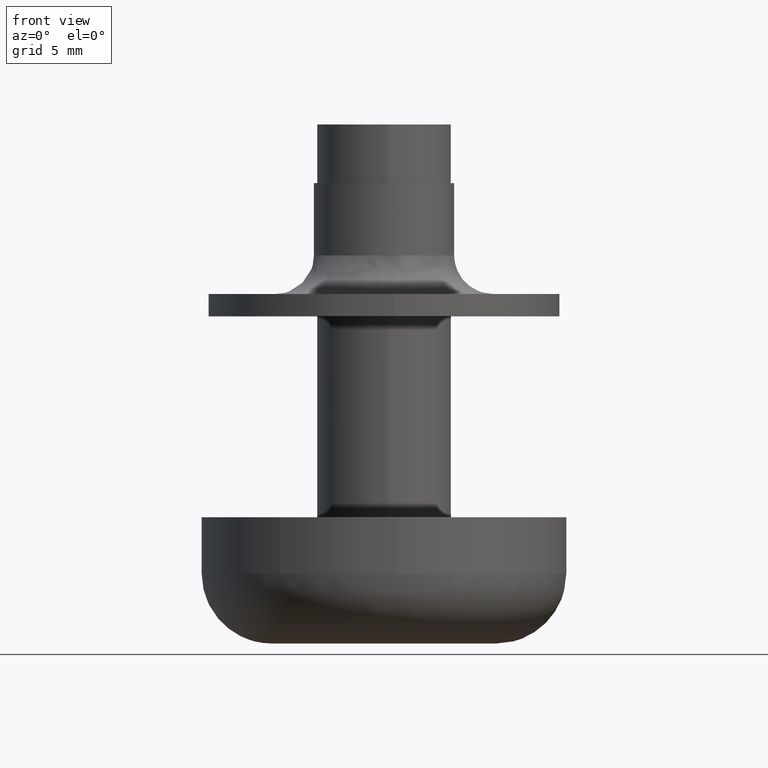
[diagram: clean part render]
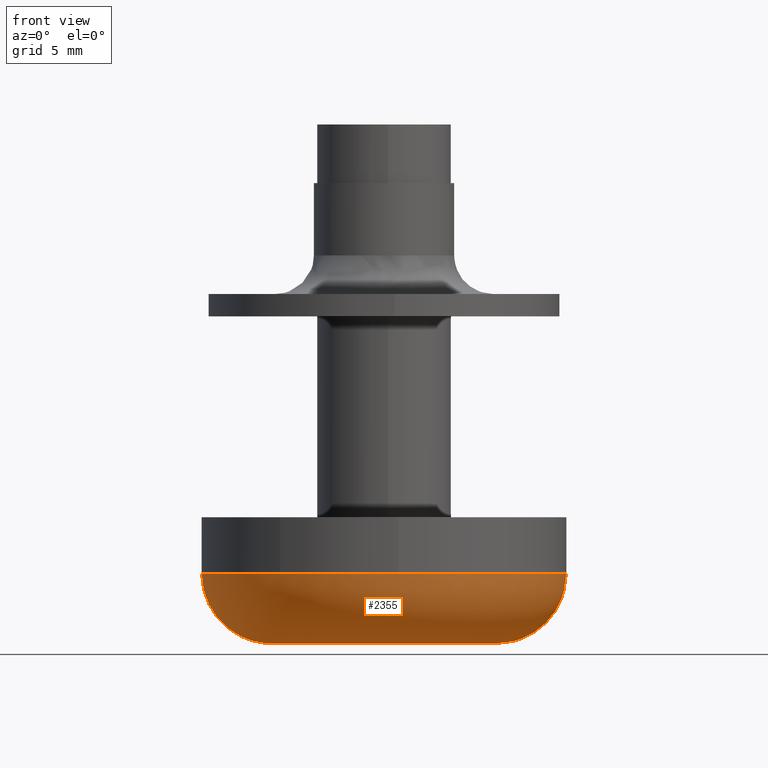
[diagram: same view with one face highlighted and labeled with its STEP entity id]
A machine part, front view. The second image highlights one B-rep face of the part: STEP entity #2355.
In plain terms, the highlighted face is a freeform B-spline surface patch.
Its self-contained STEP definition (entity closure, byte-faithful):
#1872=CARTESIAN_POINT('',(-7.420922211414788,-10.673795647853110,-32.000000000009173));
#1873=VERTEX_POINT('',#1872);
#1874=CARTESIAN_POINT('',(-12.998973574649600,-0.163358518484509,-32.000000000050612));
#1875=VERTEX_POINT('',#1874);
#1876=CARTESIAN_POINT('',(-7.420922211414788,-10.673795647853108,-32.000000000009173));
#1877=CARTESIAN_POINT('',(-12.914890403199166,-6.854132491527619,-32.000000000024230));
#1878=CARTESIAN_POINT('',(-12.998973574649593,-0.163358518484509,-32.000000000050605));
#1886=(BOUNDED_CURVE()B_SPLINE_CURVE(2,(#1876,#1877,#1878),.UNSPECIFIED.,.F.,.U.)B_SPLINE_CURVE_WITH_KNOTS((3,3),(0.848090585828457,0.997784295921704),.UNSPECIFIED.)CURVE()GEOMETRIC_REPRESENTATION_ITEM()RATIONAL_B_SPLINE_CURVE((0.860340233258638,0.822585875177073,0.994854295643956))REPRESENTATION_ITEM(''));
#1887=EDGE_CURVE('',#1873,#1875,#1886,.T.);
#1943=CARTESIAN_POINT('',(1.019966498145250,-12.959925475968531,-32.000000000000007));
#1944=VERTEX_POINT('',#1943);
#1950=CARTESIAN_POINT('',(13.0,0.0,-32.0));
#1951=VERTEX_POINT('',#1950);
#1952=CARTESIAN_POINT('',(13.0,0.0,-32.0));
#1953=CARTESIAN_POINT('',(12.999999999999998,-12.017078015834130,-32.0));
#1954=CARTESIAN_POINT('',(1.019966498145264,-12.959925475968650,-31.999999999999996));
#1962=(BOUNDED_CURVE()B_SPLINE_CURVE(2,(#1952,#1953,#1954),.UNSPECIFIED.,.F.,.U.)B_SPLINE_CURVE_WITH_KNOTS((3,3),(0.500000000000000,0.736331323731778),.UNSPECIFIED.)CURVE()GEOMETRIC_REPRESENTATION_ITEM()RATIONAL_B_SPLINE_CURVE((1.0,0.723120631543022,0.969723404377694))REPRESENTATION_ITEM(''));
#1963=EDGE_CURVE('',#1951,#1944,#1962,.T.);
#1965=CARTESIAN_POINT('',(-0.906532270490859,12.968353759924909,-32.000000000050363));
#1966=VERTEX_POINT('',#1965);
#1967=CARTESIAN_POINT('',(-0.906532270490859,12.968353759924907,-32.000000000050363));
#1968=CARTESIAN_POINT('',(-0.453818506381399,13.000000000000005,-32.000000000000007));
#1969=CARTESIAN_POINT('',(0.0,13.0,-32.0));
#1970=CARTESIAN_POINT('',(13.0,13.0,-32.0));
#1971=CARTESIAN_POINT('',(13.0,0.0,-32.0));
#1979=(BOUNDED_CURVE()B_SPLINE_CURVE(2,(#1967,#1968,#1969,#1970,#1971),.UNSPECIFIED.,.F.,.U.)B_SPLINE_CURVE_WITH_KNOTS((3,2,3),(0.237833686534866,0.250000000000000,0.500000000000000),.UNSPECIFIED.)CURVE()GEOMETRIC_REPRESENTATION_ITEM()RATIONAL_B_SPLINE_CURVE((0.972879876386499,0.985746277152414,1.0,0.707106781186547,1.0))REPRESENTATION_ITEM(''));
#1980=EDGE_CURVE('',#1966,#1951,#1979,.T.);
#2027=CARTESIAN_POINT('',(1.019966498145264,-12.959925475968650,-31.999999999999996));
#2028=CARTESIAN_POINT('',(0.510770513889300,-12.999999999999998,-32.0));
#2029=CARTESIAN_POINT('',(0.0,-13.0,-32.0));
#2030=CARTESIAN_POINT('',(-4.075053166098297,-13.000000000000004,-32.0));
#2031=CARTESIAN_POINT('',(-7.420922211414788,-10.673795647853106,-32.000000000009166));
#2039=(BOUNDED_CURVE()B_SPLINE_CURVE(2,(#2027,#2028,#2029,#2030,#2031),.UNSPECIFIED.,.F.,.U.)B_SPLINE_CURVE_WITH_KNOTS((3,2,3),(0.736331323731778,0.750000000000000,0.848090585828457),.UNSPECIFIED.)CURVE()GEOMETRIC_REPRESENTATION_ITEM()RATIONAL_B_SPLINE_CURVE((0.969723404377694,0.983986149643526,1.0,0.885079730325624,0.860340233258639))REPRESENTATION_ITEM(''));
#2040=EDGE_CURVE('',#1944,#1873,#2039,.T.);
#2252=CARTESIAN_POINT('',(-0.905687561821725,12.956280099952931,-31.652314447409072));
#2253=CARTESIAN_POINT('',(-0.534884749573036,12.982200463849928,-31.652314447409058));
#2254=CARTESIAN_POINT('',(-0.163206429528603,12.986871357237492,-31.652314447409069));
#2255=CARTESIAN_POINT('',(12.823664927708885,13.150077786766088,-31.652314447409061));
#2256=CARTESIAN_POINT('',(12.986871357237492,0.163206429528604,-31.652314447409069));
#2257=CARTESIAN_POINT('',(13.150077786766088,-12.823664927708881,-31.652314447409061));
#2258=CARTESIAN_POINT('',(0.163206429528605,-12.986871357237492,-31.652314447409069));
#2259=CARTESIAN_POINT('',(-12.823664927708879,-13.150077786766088,-31.652314447409061));
#2260=CARTESIAN_POINT('',(-12.986871357237492,-0.163206429528605,-31.652314447409069));
#2261=CARTESIAN_POINT('',(-0.933566120541245,13.355095796203145,-37.387686042102658));
#2262=CARTESIAN_POINT('',(-0.551349385422901,13.381814031703319,-37.387686042102651));
#2263=CARTESIAN_POINT('',(-0.168230192933131,13.386628702902421,-37.387686042102658));
#2264=CARTESIAN_POINT('',(13.218398509969287,13.554858895835551,-37.387686042102629));
#2265=CARTESIAN_POINT('',(13.386628702902421,0.168230192933132,-37.387686042102658));
#2266=CARTESIAN_POINT('',(13.554858895835551,-13.218398509969278,-37.387686042102629));
#2267=CARTESIAN_POINT('',(0.168230192933133,-13.386628702902421,-37.387686042102658));
#2268=CARTESIAN_POINT('',(-13.218398509969278,-13.554858895835551,-37.387686042102629));
#2269=CARTESIAN_POINT('',(-13.386628702902421,-0.168230192933134,-37.387686042102658));
#2270=CARTESIAN_POINT('',(-0.533620327583133,7.633685967033962,-36.987896807366106));
#2271=CARTESIAN_POINT('',(-0.315147725681771,7.648957936813435,-36.987896807366084));
#2272=CARTESIAN_POINT('',(-0.096159285011655,7.651709971581984,-36.987896807366084));
#2273=CARTESIAN_POINT('',(7.555550686570328,7.747869256593638,-36.987896807366077));
#2274=CARTESIAN_POINT('',(7.651709971581984,0.096159285011656,-36.987896807366084));
#2275=CARTESIAN_POINT('',(7.747869256593638,-7.555550686570328,-36.987896807366077));
#2276=CARTESIAN_POINT('',(0.096159285011656,-7.651709971581984,-36.987896807366084));
#2277=CARTESIAN_POINT('',(-7.555550686570326,-7.747869256593638,-36.987896807366077));
#2278=CARTESIAN_POINT('',(-7.651709971581984,-0.096159285011657,-36.987896807366084));
#2286=(BOUNDED_SURFACE()B_SPLINE_SURFACE(2,2,((#2252,#2261,#2270),(#2253,#2262,#2271),(#2254,#2263,#2272),(#2255,#2264,#2273),(#2256,#2265,#2274),(#2257,#2266,#2275),(#2258,#2267,#2276),(#2259,#2268,#2277),(#2260,#2269,#2278)),.UNSPECIFIED.,.F.,.F.,.U.)B_SPLINE_SURFACE_WITH_KNOTS((3,2,2,2,3),(3,3),(0.0,0.860761261102810,22.379813310840319,43.898865360577837,65.417917410315354),(0.0,9.111869915557183),.UNSPECIFIED.)GEOMETRIC_REPRESENTATION_ITEM()RATIONAL_B_SPLINE_SURFACE(((0.889999300497181,0.584039754305338,0.889999323362237),(0.899812871527177,0.590479664550228,0.899812894644354),(0.910479795675192,0.597479566409837,0.910479819066415),(0.643806437655271,0.422481853028794,0.643806454195363),(0.910479795675192,0.597479566409837,0.910479819066415),(0.643806437655271,0.422481853028794,0.643806454195363),(0.910479795675192,0.597479566409837,0.910479819066415),(0.643806437655271,0.422481853028794,0.643806454195363),(0.910479795675192,0.597479566409837,0.910479819066415)))REPRESENTATION_ITEM('')SURFACE());
#2287=ORIENTED_EDGE('',*,*,#1980,.T.);
#2288=ORIENTED_EDGE('',*,*,#1963,.T.);
#2289=ORIENTED_EDGE('',*,*,#2040,.T.);
#2290=ORIENTED_EDGE('',*,*,#1887,.T.);
#2291=CARTESIAN_POINT('',(-7.999368354055104,-0.100528319209804,-37.0));
#2292=VERTEX_POINT('',#2291);
#2293=CARTESIAN_POINT('',(-12.998973574649595,-0.163358518484509,-32.000000000050598));
#2294=CARTESIAN_POINT('',(-12.998973574548398,-0.163358518482313,-36.999999999147327));
#2295=CARTESIAN_POINT('',(-7.999368354055104,-0.100528319209804,-37.000000000000007));
#2303=(BOUNDED_CURVE()B_SPLINE_CURVE(2,(#2293,#2294,#2295),.UNSPECIFIED.,.F.,.U.)B_SPLINE_CURVE_WITH_KNOTS((3,3),(-1.725134643261056,-0.274865356893069),.UNSPECIFIED.)CURVE()GEOMETRIC_REPRESENTATION_ITEM()RATIONAL_B_SPLINE_CURVE((0.883342149645653,0.624617224162483,0.883342149590662))REPRESENTATION_ITEM(''));
#2304=EDGE_CURVE('',#1875,#2292,#2303,.T.);
#2305=ORIENTED_EDGE('',*,*,#2304,.T.);
#2306=CARTESIAN_POINT('',(8.0,0.0,-37.0));
#2307=VERTEX_POINT('',#2306);
#2308=CARTESIAN_POINT('',(8.0,0.0,-37.0));
#2309=CARTESIAN_POINT('',(8.0,-8.0,-37.0));
#2310=CARTESIAN_POINT('',(0.0,-8.0,-37.0));
#2311=CARTESIAN_POINT('',(-7.900095438986693,-8.0,-37.0));
#2312=CARTESIAN_POINT('',(-7.999368354055104,-0.100528319209804,-37.0));
#2320=(BOUNDED_CURVE()B_SPLINE_CURVE(2,(#2308,#2309,#2310,#2311,#2312),.UNSPECIFIED.,.F.,.U.)B_SPLINE_CURVE_WITH_KNOTS((3,2,3),(0.500000000000000,0.750000000000000,0.997784295915678),.UNSPECIFIED.)CURVE()GEOMETRIC_REPRESENTATION_ITEM()RATIONAL_B_SPLINE_CURVE((1.0,0.707106781186548,1.0,0.709702639991329,0.994854295630086))REPRESENTATION_ITEM(''));
#2321=EDGE_CURVE('',#2307,#2292,#2320,.T.);
#2322=ORIENTED_EDGE('',*,*,#2321,.F.);
#2323=CARTESIAN_POINT('',(-0.557866012625054,7.980525390819206,-37.0));
#2324=VERTEX_POINT('',#2323);
#2325=CARTESIAN_POINT('',(-0.557866012625054,7.980525390819206,-37.0));
#2326=CARTESIAN_POINT('',(-0.279272927012499,8.0,-37.0));
#2327=CARTESIAN_POINT('',(0.0,8.0,-37.0));
#2328=CARTESIAN_POINT('',(8.0,8.0,-37.0));
#2329=CARTESIAN_POINT('',(8.0,0.0,-37.0));
#2337=(BOUNDED_CURVE()B_SPLINE_CURVE(2,(#2325,#2326,#2327,#2328,#2329),.UNSPECIFIED.,.F.,.U.)B_SPLINE_CURVE_WITH_KNOTS((3,2,3),(0.237833686534499,0.250000000000000,0.500000000000000),.UNSPECIFIED.)CURVE()GEOMETRIC_REPRESENTATION_ITEM()RATIONAL_B_SPLINE_CURVE((0.972879876385722,0.985746277151984,1.0,0.707106781186548,1.0))REPRESENTATION_ITEM(''));
#2338=EDGE_CURVE('',#2324,#2307,#2337,.T.);
#2339=ORIENTED_EDGE('',*,*,#2338,.F.);
#2340=CARTESIAN_POINT('',(-0.906532270490859,12.968353759924918,-32.000000000050370));
#2341=CARTESIAN_POINT('',(-0.906532270473723,12.968353759825133,-36.999999999805986));
#2342=CARTESIAN_POINT('',(-0.557866012625054,7.980525390819206,-36.999999999999993));
#2350=(BOUNDED_CURVE()B_SPLINE_CURVE(2,(#2340,#2341,#2342),.UNSPECIFIED.,.F.,.U.)B_SPLINE_CURVE_WITH_KNOTS((3,3),(-1.725134643261155,-0.274865356757980),.UNSPECIFIED.)CURVE()GEOMETRIC_REPRESENTATION_ITEM()RATIONAL_B_SPLINE_CURVE((0.863472075365497,0.610566959871802,0.863472075358824))REPRESENTATION_ITEM(''));
#2351=EDGE_CURVE('',#1966,#2324,#2350,.T.);
#2352=ORIENTED_EDGE('',*,*,#2351,.F.);
#2353=EDGE_LOOP('',(#2287,#2288,#2289,#2290,#2305,#2322,#2339,#2352));
#2354=FACE_OUTER_BOUND('',#2353,.T.);
#2355=ADVANCED_FACE('',(#2354),#2286,.T.);